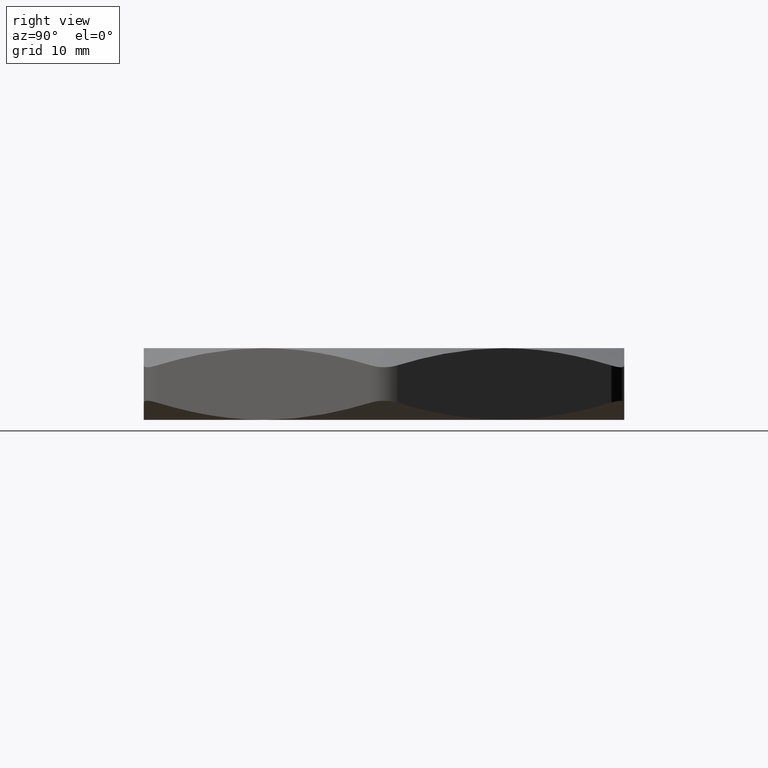
[diagram: clean part render]
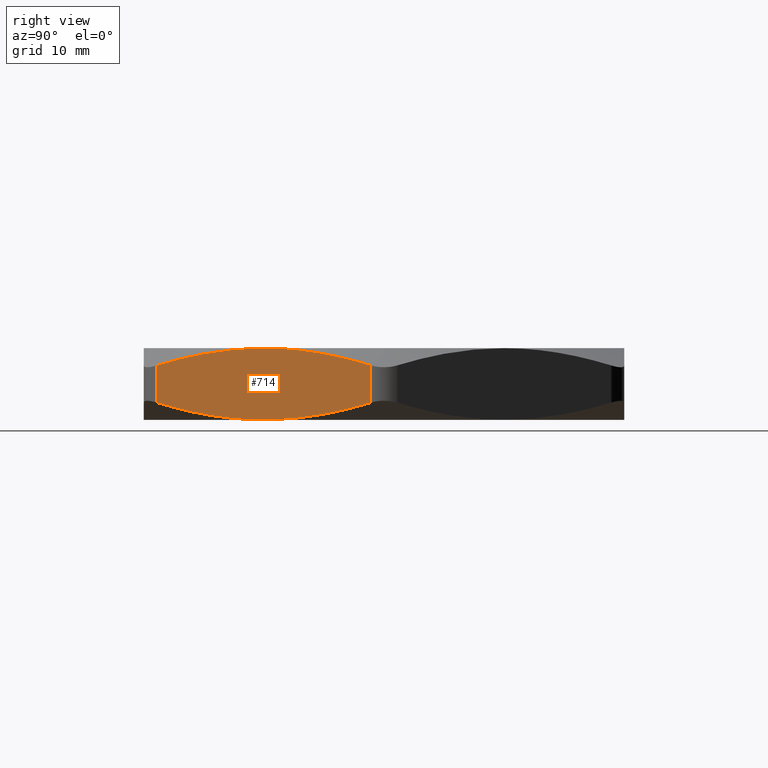
[diagram: same view with one face highlighted and labeled with its STEP entity id]
A machine part, right view. The second image highlights one B-rep face of the part: STEP entity #714.
In plain terms, the highlighted planar face has unit normal (-0.866, 0.5, 0).
Its self-contained STEP definition (entity closure, byte-faithful):
#295 = CARTESIAN_POINT ( 'NONE',  ( 0.7837529904249168600, -0.4525000000000000100, 0.0000000000000000000 ) ) ;
#713 = EDGE_LOOP ( 'NONE', ( #790, #842, #791, #794, #829, #832 ) ) ;
#714 = ADVANCED_FACE ( 'NONE', ( #1068 ), #1067, .F. ) ;
#790 = ORIENTED_EDGE ( 'NONE', *, *, #840, .F. ) ;
#791 = ORIENTED_EDGE ( 'NONE', *, *, #792, .F. ) ;
#792 = EDGE_CURVE ( 'NONE', #793, #844, #1422, .T. ) ;
#793 = VERTEX_POINT ( 'NONE', #1339 ) ;
#794 = ORIENTED_EDGE ( 'NONE', *, *, #795, .F. ) ;
#795 = EDGE_CURVE ( 'NONE', #828, #793, #1341, .T. ) ;
#828 = VERTEX_POINT ( 'NONE', #1419 ) ;
#829 = ORIENTED_EDGE ( 'NONE', *, *, #830, .T. ) ;
#830 = EDGE_CURVE ( 'NONE', #828, #831, #1408, .T. ) ;
#831 = VERTEX_POINT ( 'NONE', #1306 ) ;
#832 = ORIENTED_EDGE ( 'NONE', *, *, #833, .F. ) ;
#833 = EDGE_CURVE ( 'NONE', #2587, #831, #1304, .T. ) ;
#840 = EDGE_CURVE ( 'NONE', #841, #2587, #1362, .T. ) ;
#841 = VERTEX_POINT ( 'NONE', #1361 ) ;
#842 = ORIENTED_EDGE ( 'NONE', *, *, #843, .T. ) ;
#843 = EDGE_CURVE ( 'NONE', #841, #844, #1250, .T. ) ;
#844 = VERTEX_POINT ( 'NONE', #1240 ) ;
#1026 = DIRECTION ( 'NONE',  ( -0.5000000000000001100, -0.8660254037844386000, 0.0000000000000000000 ) ) ;
#1027 = DIRECTION ( 'NONE',  ( -0.8660254037844386000, 0.5000000000000001100, 0.0000000000000000000 ) ) ;
#1028 = CARTESIAN_POINT ( 'NONE',  ( 0.5225019936166112000, -0.9049999999999998000, 0.2700000000000000200 ) ) ;
#1067 = PLANE ( 'NONE',  #1082 ) ;
#1068 = FACE_OUTER_BOUND ( 'NONE', #713, .T. ) ;
#1082 = AXIS2_PLACEMENT_3D ( 'NONE', #1028, #1027, #1026 ) ;
#1240 = CARTESIAN_POINT ( 'NONE',  ( 1.016136473773741500, -0.04999999999999939200, 0.2051255290633314000 ) ) ;
#1241 = DIRECTION ( 'NONE',  ( 0.0000000000000000000, 0.0000000000000000000, 1.000000000000000000 ) ) ;
#1242 = VECTOR ( 'NONE', #1241, 39.37007874015748100 ) ;
#1243 = CARTESIAN_POINT ( 'NONE',  ( 1.016136473773741500, -0.04999999999999973900, 0.2700000000000000200 ) ) ;
#1244 = CARTESIAN_POINT ( 'NONE',  ( 0.7837529904249168600, -0.4525000000000000100, 0.0000000000000000000 ) ) ;
#1245 = CARTESIAN_POINT ( 'NONE',  ( 0.8232601311883532800, -0.3840716249359520900, -2.136924065356518000E-016 ) ) ;
#1246 = CARTESIAN_POINT ( 'NONE',  ( 0.8623325685596852100, -0.3163961782332522800, 0.006052579135682025300 ) ) ;
#1247 = CARTESIAN_POINT ( 'NONE',  ( 0.9397362926040325700, -0.1823289954934027300, 0.02847712606262843600 ) ) ;
#1248 = CARTESIAN_POINT ( 'NONE',  ( 0.9780714679735816900, -0.1159305240362802100, 0.04479494970886082500 ) ) ;
#1249 = CARTESIAN_POINT ( 'NONE',  ( 1.016136473773741500, -0.04999999999999955900, 0.06487447093666877400 ) ) ;
#1250 = LINE ( 'NONE', #1243, #1242 ) ;
#1262 = CARTESIAN_POINT ( 'NONE',  ( 0.7837529904249167500, -0.4524999999999999600, 0.2700000000000000200 ) ) ;
#1263 = CARTESIAN_POINT ( 'NONE',  ( 0.7442458496614803300, -0.5209283750640476600, 0.2700000000000002400 ) ) ;
#1264 = CARTESIAN_POINT ( 'NONE',  ( 0.7051734122901484000, -0.5886038217667471900, 0.2639474208643180500 ) ) ;
#1265 = CARTESIAN_POINT ( 'NONE',  ( 0.6277696882458014800, -0.7226710045065967100, 0.2415228739373717300 ) ) ;
#1282 = CARTESIAN_POINT ( 'NONE',  ( 0.5894345128762522600, -0.7890694759637187900, 0.2252050502911392700 ) ) ;
#1283 = CARTESIAN_POINT ( 'NONE',  ( 0.5513695070760924500, -0.8549999999999996500, 0.2051255290633314500 ) ) ;
#1297 = CARTESIAN_POINT ( 'NONE',  ( 1.016136473773741500, -0.04999999999999939200, 0.2051255290633314000 ) ) ;
#1298 = CARTESIAN_POINT ( 'NONE',  ( 0.9781582342842221100, -0.1157802403778659500, 0.2251592805364857900 ) ) ;
#1299 = CARTESIAN_POINT ( 'NONE',  ( 0.9398718127573831800, -0.1820942677023500400, 0.2414719789074261700 ) ) ;
#1300 = CARTESIAN_POINT ( 'NONE',  ( 0.8818102000647625200, -0.2826599308553550100, 0.2583103655168137400 ) ) ;
#1304 = B_SPLINE_CURVE_WITH_KNOTS ( 'NONE', 3,
 ( #1305, #1384, #1383, #1382, #1381, #1380, #1379, #1378, #1377, #1376 ),
 .UNSPECIFIED., .F., .F.,
 ( 4, 2, 2, 2, 4 ),
 ( 0.01342887310930230100, 0.01491280702405096300, 0.01639674093879962500, 0.01936460876829695200, 0.02530034442729160000 ),
 .UNSPECIFIED. ) ;
#1305 = CARTESIAN_POINT ( 'NONE',  ( 0.7837529904249168600, -0.4525000000000000100, 0.0000000000000000000 ) ) ;
#1306 = CARTESIAN_POINT ( 'NONE',  ( 0.5513695070760924500, -0.8549999999999997600, 0.06487447093666846900 ) ) ;
#1339 = CARTESIAN_POINT ( 'NONE',  ( 0.7837529904249167500, -0.4524999999999999600, 0.2700000000000000200 ) ) ;
#1341 = B_SPLINE_CURVE_WITH_KNOTS ( 'NONE', 3,
 ( #1283, #1282, #1265, #1264, #1263, #1262 ),
 .UNSPECIFIED., .F., .F.,
 ( 4, 2, 4 ),
 ( 0.001509436401969140300, 0.007469154755635712400, 0.01342887310930228300 ),
 .UNSPECIFIED. ) ;
#1361 = CARTESIAN_POINT ( 'NONE',  ( 1.016136473773741500, -0.04999999999999955900, 0.06487447093666877400 ) ) ;
#1362 = B_SPLINE_CURVE_WITH_KNOTS ( 'NONE', 3,
 ( #1249, #1248, #1247, #1246, #1245, #1244 ),
 .UNSPECIFIED., .F., .F.,
 ( 4, 2, 4 ),
 ( 0.001509436401969138400, 0.007469154755635717600, 0.01342887310930230100 ),
 .UNSPECIFIED. ) ;
#1370 = CARTESIAN_POINT ( 'NONE',  ( 0.8623509156285432700, -0.3163644001778216900, 0.2626503763753306700 ) ) ;
#1371 = CARTESIAN_POINT ( 'NONE',  ( 0.8329860387546805800, -0.3672258588813555600, 0.2670359336390746300 ) ) ;
#1372 = CARTESIAN_POINT ( 'NONE',  ( 0.8231684685533755500, -0.3842303892768897400, 0.2681442785722018600 ) ) ;
#1373 = CARTESIAN_POINT ( 'NONE',  ( 0.8034725561546465200, -0.4183447102529142500, 0.2696271948978106200 ) ) ;
#1374 = CARTESIAN_POINT ( 'NONE',  ( 0.7935900301262215400, -0.4354617474412677000, 0.2700000000000002400 ) ) ;
#1375 = CARTESIAN_POINT ( 'NONE',  ( 0.7837529904249167500, -0.4524999999999999600, 0.2700000000000000200 ) ) ;
#1376 = CARTESIAN_POINT ( 'NONE',  ( 0.5513695070760924500, -0.8549999999999997600, 0.06487447093666846900 ) ) ;
#1377 = CARTESIAN_POINT ( 'NONE',  ( 0.5893477465656117300, -0.7892197596221334200, 0.04484071946351413100 ) ) ;
#1378 = CARTESIAN_POINT ( 'NONE',  ( 0.6276341680924509800, -0.7229057322976494300, 0.02852802109257384500 ) ) ;
#1379 = CARTESIAN_POINT ( 'NONE',  ( 0.6856957807850716500, -0.6223400691446446800, 0.01168963448318630400 ) ) ;
#1380 = CARTESIAN_POINT ( 'NONE',  ( 0.7051550652212912300, -0.5886355998221781700, 0.007349623624669289800 ) ) ;
#1381 = CARTESIAN_POINT ( 'NONE',  ( 0.7345199420951534800, -0.5377741411186441900, 0.002964066360925377300 ) ) ;
#1382 = CARTESIAN_POINT ( 'NONE',  ( 0.7443375122964582800, -0.5207696107231097900, 0.001855721427798214700 ) ) ;
#1383 = CARTESIAN_POINT ( 'NONE',  ( 0.7640334246951876500, -0.4866552897470855500, 0.0003728051021894101800 ) ) ;
#1384 = CARTESIAN_POINT ( 'NONE',  ( 0.7739159507236118600, -0.4695382525587318800, -2.174065126183465700E-016 ) ) ;
#1405 = DIRECTION ( 'NONE',  ( 0.0000000000000000000, 0.0000000000000000000, -1.000000000000000000 ) ) ;
#1406 = VECTOR ( 'NONE', #1405, 39.37007874015748100 ) ;
#1407 = CARTESIAN_POINT ( 'NONE',  ( 0.5513695070760924500, -0.8549999999999997600, 0.2700000000000000200 ) ) ;
#1408 = LINE ( 'NONE', #1407, #1406 ) ;
#1419 = CARTESIAN_POINT ( 'NONE',  ( 0.5513695070760924500, -0.8549999999999996500, 0.2051255290633314500 ) ) ;
#1422 = B_SPLINE_CURVE_WITH_KNOTS ( 'NONE', 3,
 ( #1375, #1374, #1373, #1372, #1371, #1370, #1300, #1299, #1298, #1297 ),
 .UNSPECIFIED., .F., .F.,
 ( 4, 2, 2, 2, 4 ),
 ( 0.01342887310930228300, 0.01491280702405094900, 0.01639674093879961400, 0.01936460876829694500, 0.02530034442729160000 ),
 .UNSPECIFIED. ) ;
#2587 = VERTEX_POINT ( 'NONE', #295 ) ;